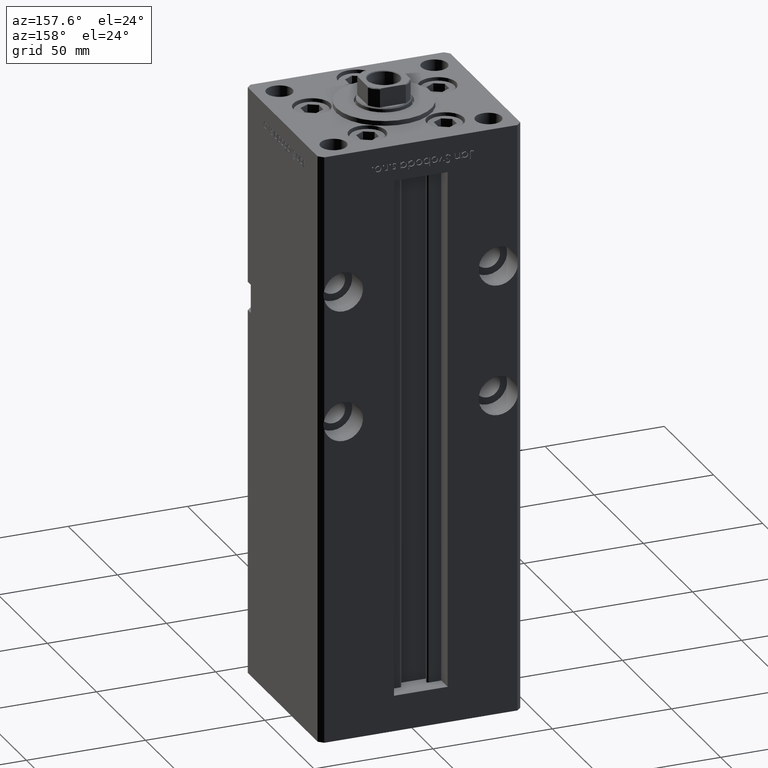
[diagram: clean part render]
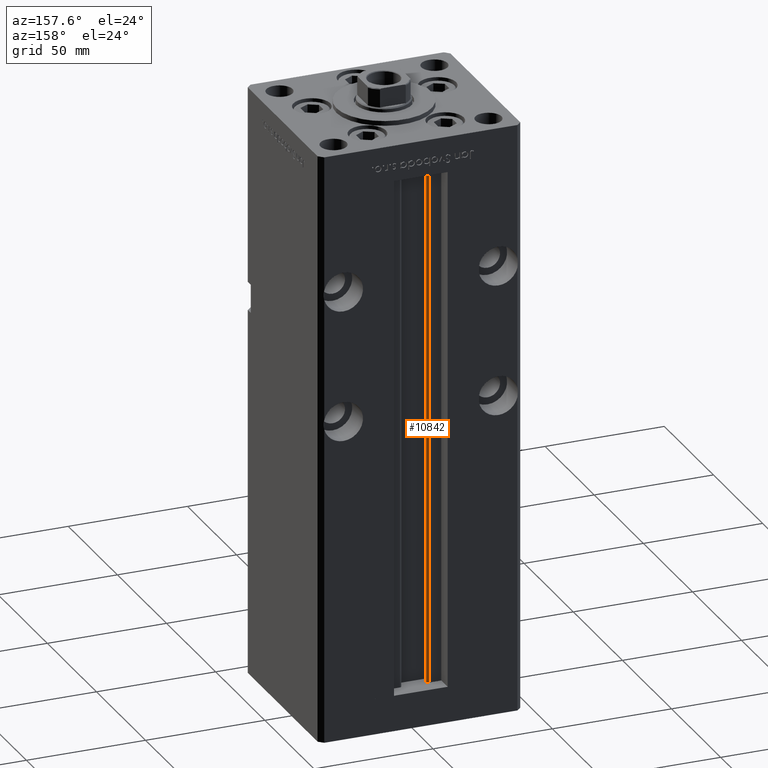
[diagram: same view with one face highlighted and labeled with its STEP entity id]
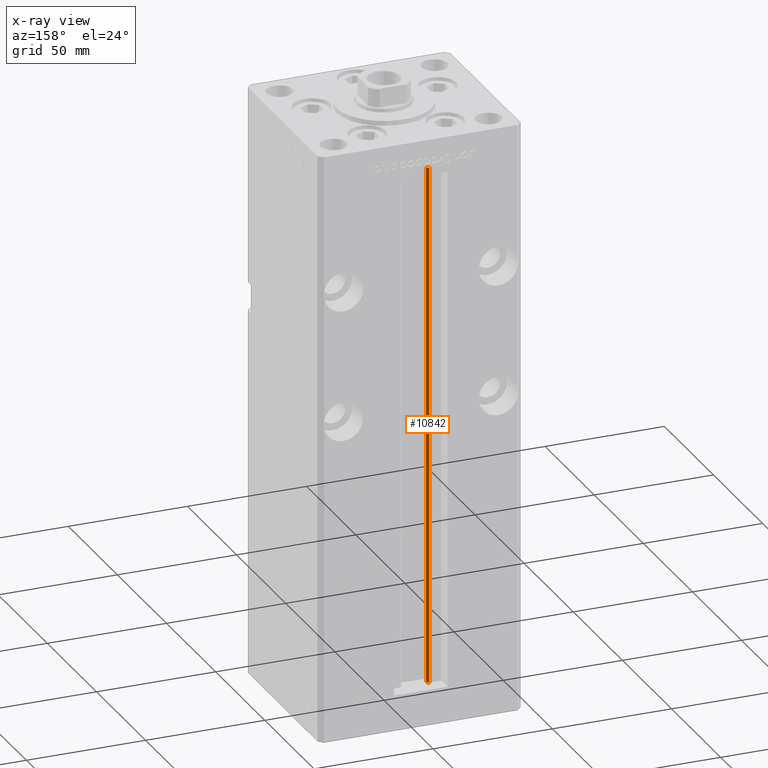
[diagram: x-ray of the same camera — body ghosted, the highlighted face saturated]
A machine part, auxiliary view. The second image highlights one B-rep face of the part: STEP entity #10842.
The next image is the same camera in x-ray: the body ghosted, the highlighted face saturated — about 0% of this face is hidden behind the body in this view.
In plain terms, the highlighted cylindrical surface (edge-blend (fillet) strip) has radius 0.9333 mm, axis along (0, 0, 1).
Its self-contained STEP definition (entity closure, byte-faithful):
#533 = VERTEX_POINT ( 'NONE', #21277 ) ;
#3547 = CARTESIAN_POINT ( 'NONE',  ( -6.183333333333997928, 31.00000000000000000, 0.000000000000000000 ) ) ;
#3601 = DIRECTION ( 'NONE',  ( 1.000000000000000000, 0.000000000000000000, 0.000000000000000000 ) ) ;
#3623 = AXIS2_PLACEMENT_3D ( 'NONE', #51707, #22427, #34527 ) ;
#7608 = VECTOR ( 'NONE', #19339, 1000.000000000000000 ) ;
#9747 = VERTEX_POINT ( 'NONE', #24107 ) ;
#10159 = ORIENTED_EDGE ( 'NONE', *, *, #34735, .T. ) ;
#10842 = ADVANCED_FACE ( 'NONE', ( #11410 ), #40985, .T. ) ;
#11410 = FACE_OUTER_BOUND ( 'NONE', #25384, .T. ) ;
#11877 = LINE ( 'NONE', #3547, #42020 ) ;
#12210 = CARTESIAN_POINT ( 'NONE',  ( -6.183333333333997928, 30.06666666666599852, 0.000000000000000000 ) ) ;
#12681 = CARTESIAN_POINT ( 'NONE',  ( -6.183333333333997928, 30.06666666666599852, 218.5000000000000000 ) ) ;
#13687 = AXIS2_PLACEMENT_3D ( 'NONE', #12681, #45239, #46024 ) ;
#15540 = CARTESIAN_POINT ( 'NONE',  ( -6.183333333333997928, 31.00000000000000000, 0.000000000000000000 ) ) ;
#19339 = DIRECTION ( 'NONE',  ( -0.000000000000000000, -0.000000000000000000, 1.000000000000000000 ) ) ;
#19605 = ORIENTED_EDGE ( 'NONE', *, *, #51425, .F. ) ;
#20399 = CARTESIAN_POINT ( 'NONE',  ( -5.249999999999996447, 30.06666666666599852, 0.000000000000000000 ) ) ;
#21123 = ORIENTED_EDGE ( 'NONE', *, *, #43036, .F. ) ;
#21277 = CARTESIAN_POINT ( 'NONE',  ( -5.249999999999996447, 30.06666666666599852, 218.5000000000000000 ) ) ;
#22427 = DIRECTION ( 'NONE',  ( -0.000000000000000000, -0.000000000000000000, -1.000000000000000000 ) ) ;
#24107 = CARTESIAN_POINT ( 'NONE',  ( -6.183333333333997928, 31.00000000000000000, 218.5000000000000000 ) ) ;
#24318 = DIRECTION ( 'NONE',  ( -0.000000000000000000, -0.000000000000000000, 1.000000000000000000 ) ) ;
#25384 = EDGE_LOOP ( 'NONE', ( #19605, #21123, #10159, #47900 ) ) ;
#31124 = CIRCLE ( 'NONE', #3623, 0.9333333333340008142 ) ;
#31267 = DIRECTION ( 'NONE',  ( -0.000000000000000000, -0.000000000000000000, 1.000000000000000000 ) ) ;
#34527 = DIRECTION ( 'NONE',  ( 1.000000000000000000, 0.000000000000000000, 0.000000000000000000 ) ) ;
#34735 = EDGE_CURVE ( 'NONE', #48234, #9747, #11877, .T. ) ;
#35511 = EDGE_CURVE ( 'NONE', #9747, #533, #46360, .T. ) ;
#37225 = AXIS2_PLACEMENT_3D ( 'NONE', #12210, #24318, #3601 ) ;
#37827 = VERTEX_POINT ( 'NONE', #38877 ) ;
#38877 = CARTESIAN_POINT ( 'NONE',  ( -5.249999999999996447, 30.06666666666599852, 0.000000000000000000 ) ) ;
#40298 = LINE ( 'NONE', #20399, #7608 ) ;
#40985 = CYLINDRICAL_SURFACE ( 'NONE', #37225, 0.9333333333340008142 ) ;
#42020 = VECTOR ( 'NONE', #31267, 1000.000000000000000 ) ;
#43036 = EDGE_CURVE ( 'NONE', #48234, #37827, #31124, .T. ) ;
#45239 = DIRECTION ( 'NONE',  ( 0.000000000000000000, 0.000000000000000000, -1.000000000000000000 ) ) ;
#46024 = DIRECTION ( 'NONE',  ( 1.000000000000000000, 0.000000000000000000, 0.000000000000000000 ) ) ;
#46360 = CIRCLE ( 'NONE', #13687, 0.9333333333340008142 ) ;
#47900 = ORIENTED_EDGE ( 'NONE', *, *, #35511, .T. ) ;
#48234 = VERTEX_POINT ( 'NONE', #15540 ) ;
#51425 = EDGE_CURVE ( 'NONE', #37827, #533, #40298, .T. ) ;
#51707 = CARTESIAN_POINT ( 'NONE',  ( -6.183333333333997928, 30.06666666666599852, 0.000000000000000000 ) ) ;